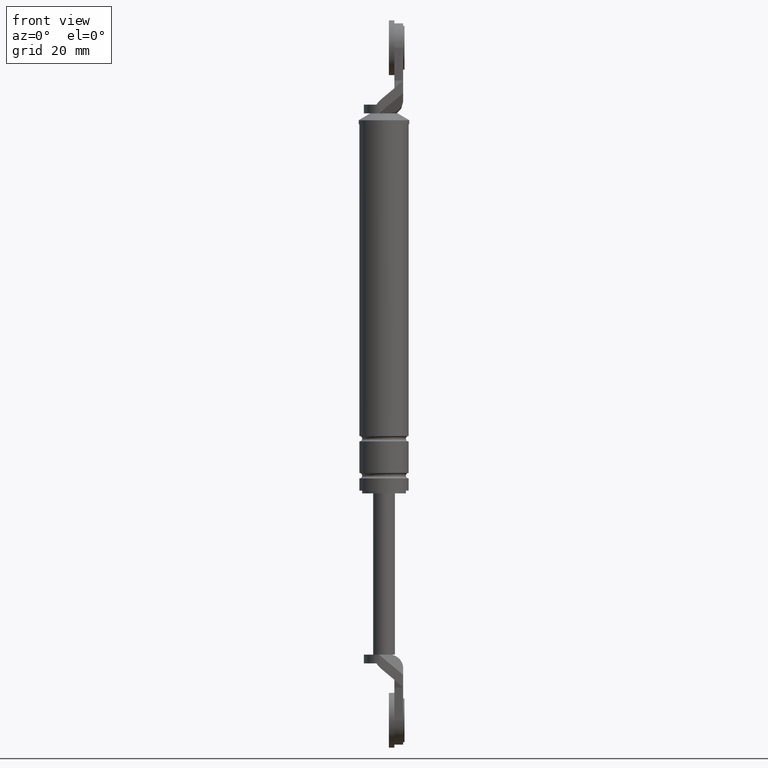
[diagram: clean part render]
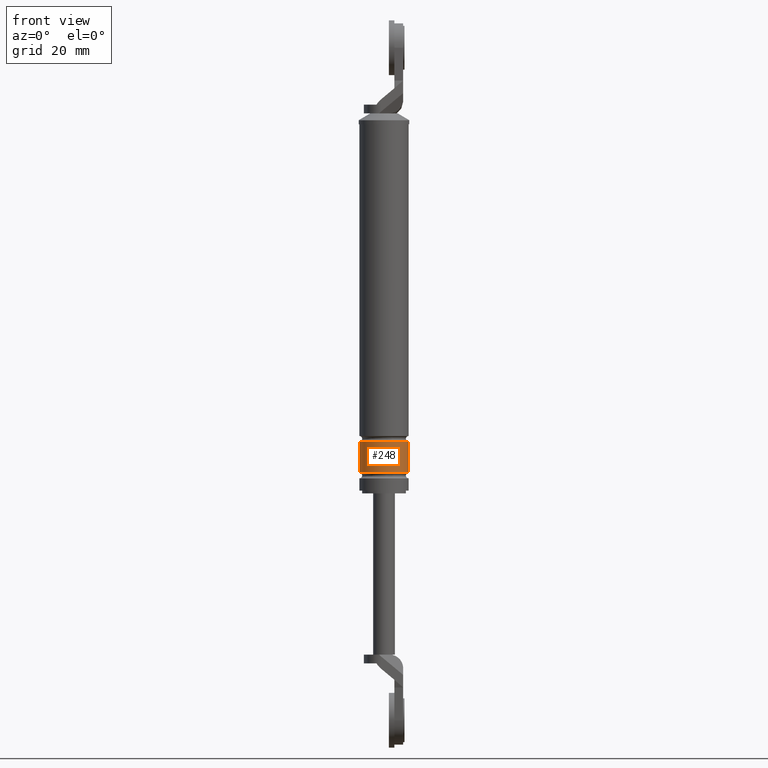
[diagram: same view with one face highlighted and labeled with its STEP entity id]
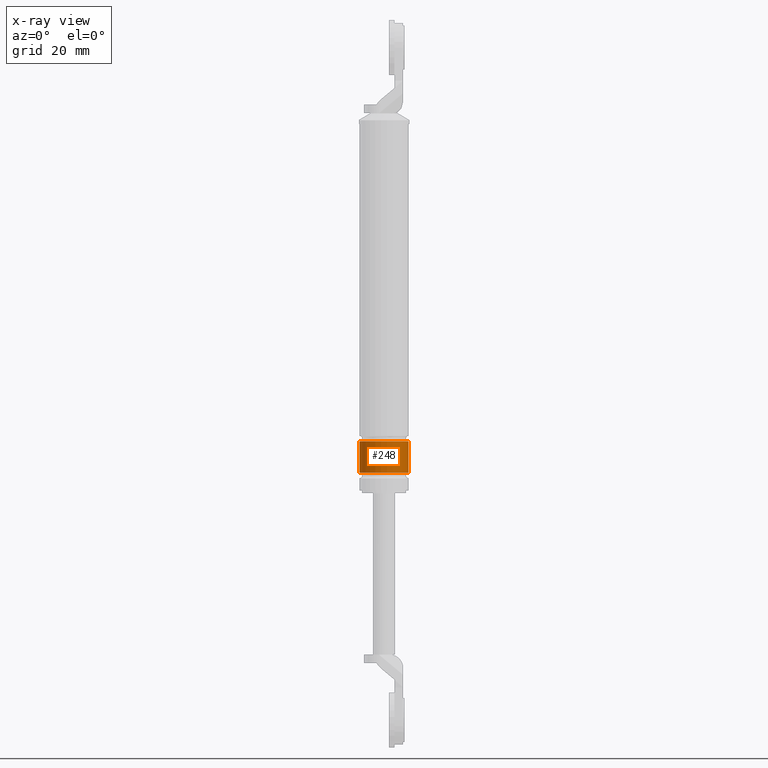
[diagram: x-ray of the same camera — body ghosted, the highlighted face saturated]
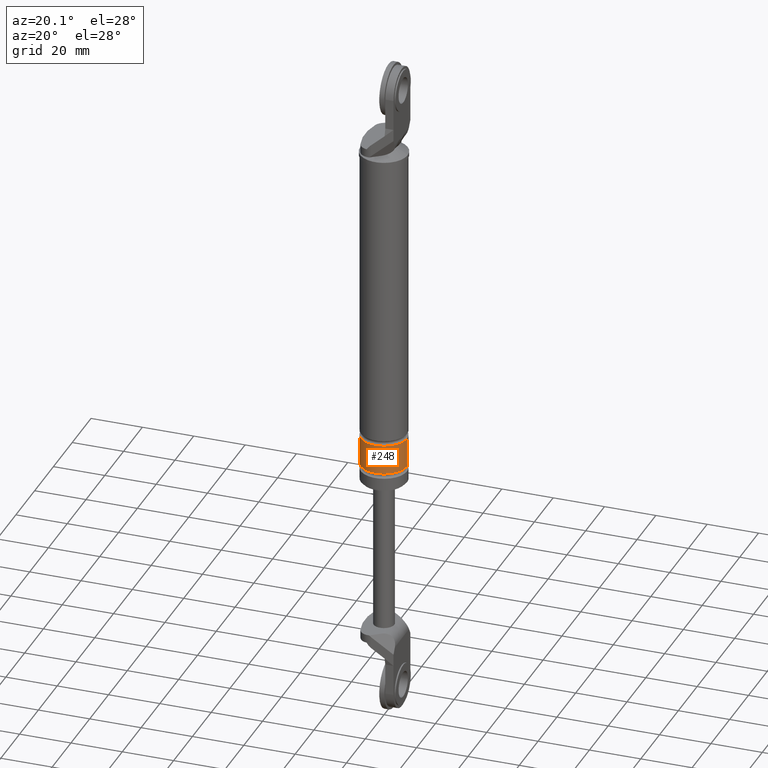
[diagram: same view with one face highlighted and labeled with its STEP entity id]
A machine part, front view. The second image highlights one B-rep face of the part: STEP entity #248.
The next image is the same camera in x-ray: the body ghosted, the highlighted face saturated — about 0% of this face is hidden behind the body in this view.
A second angle (auxiliary view) of the same face is appended — the face is thin or edge-on in the first view.
In plain terms, the highlighted cylindrical surface (edge-blend (fillet) strip) has radius 9 mm, axis along (0, 0, 1).
Its self-contained STEP definition (entity closure, byte-faithful):
#248=ADVANCED_FACE('',(#735),#734,.T.);
#734=CYLINDRICAL_SURFACE('',#1469,9.00000000000E+000);
#735=FACE_OUTER_BOUND('',#1470,.T.);
#1466=CARTESIAN_POINT('',(0.00000000000E+000,3.58204186421E-014,0.00000000000E+000));
#1467=DIRECTION('',(-0.00000000000E+000,-0.00000000000E+000,1.00000000000E+000));
#1468=DIRECTION('',(1.00000000000E+000,0.00000000000E+000,0.00000000000E+000));
#1469=AXIS2_PLACEMENT_3D('',#1466,#1467,#1468);
#1470=EDGE_LOOP('',(#1970,#1971,#1972,#1973));
#1970=ORIENTED_EDGE('',*,*,#2272,.F.);
#1971=ORIENTED_EDGE('',*,*,#2269,.T.);
#1972=ORIENTED_EDGE('',*,*,#2268,.T.);
#1973=ORIENTED_EDGE('',*,*,#2271,.F.);
#2268=EDGE_CURVE('',#3072,#3079,#3092,.T.);
#2269=EDGE_CURVE('',#3098,#3072,#3099,.T.);
#2271=EDGE_CURVE('',#3105,#3079,#3112,.T.);
#2272=EDGE_CURVE('',#3098,#3105,#3118,.T.);
#3072=VERTEX_POINT('',#4117);
#3079=VERTEX_POINT('',#4123);
#3092=CIRCLE('',#4136,9.00000000000E+000);
#3098=VERTEX_POINT('',#4137);
#3099=(BOUNDED_CURVE() B_SPLINE_CURVE(1,(#4138,#4139),.UNSPECIFIED.,.F.,.F.) B_SPLINE_CURVE_WITH_KNOTS((2,2),(8.33333343261E-002,9.16666667006E-001),.UNSPECIFIED.) CURVE() GEOMETRIC_REPRESENTATION_ITEM() RATIONAL_B_SPLINE_CURVE((1.00000000000E+000,1.00000000000E+000)) REPRESENTATION_ITEM('') );
#3105=VERTEX_POINT('',#4140);
#3112=(BOUNDED_CURVE() B_SPLINE_CURVE(1,(#4145,#4146),.UNSPECIFIED.,.F.,.F.) B_SPLINE_CURVE_WITH_KNOTS((2,2),(8.33333333333E-002,9.16666666667E-001),.UNSPECIFIED.) CURVE() GEOMETRIC_REPRESENTATION_ITEM() RATIONAL_B_SPLINE_CURVE((7.50000000000E-001,7.50000000000E-001)) REPRESENTATION_ITEM('') );
#3118=CIRCLE('',#4150,9.00000000000E+000);
#4117=CARTESIAN_POINT('',(9.00000000000E+000,3.61192557345E-014,-3.10000150000E+001));
#4123=CARTESIAN_POINT('',(-9.00000000000E+000,3.58204186421E-014,-3.10000150000E+001));
#4133=CARTESIAN_POINT('',(0.00000000000E+000,3.58204186421E-014,-3.10000150000E+001));
#4134=DIRECTION('',(-0.00000000000E+000,0.00000000000E+000,-1.00000000000E+000));
#4135=DIRECTION('',(-1.00000000000E+000,-1.22460635382E-016,0.00000000000E+000));
#4136=AXIS2_PLACEMENT_3D('',#4133,#4134,#4135);
#4137=CARTESIAN_POINT('',(9.00000000000E+000,3.61192557345E-014,-4.25000150000E+001));
#4138=CARTESIAN_POINT('',(9.00000000000E+000,3.58204186421E-014,-4.25000149863E+001));
#4139=CARTESIAN_POINT('',(9.00000000000E+000,3.58204186421E-014,-3.10000149953E+001));
#4140=CARTESIAN_POINT('',(-9.00000000000E+000,3.58204186421E-014,-4.25000150000E+001));
#4145=CARTESIAN_POINT('',(-9.00000000000E+000,3.52310773148E-014,-4.25000150000E+001));
#4146=CARTESIAN_POINT('',(-9.00000000000E+000,3.52310773148E-014,-3.10000150000E+001));
#4147=CARTESIAN_POINT('',(0.00000000000E+000,3.58204186421E-014,-4.25000150000E+001));
#4148=DIRECTION('',(-0.00000000000E+000,0.00000000000E+000,-1.00000000000E+000));
#4149=DIRECTION('',(-1.00000000000E+000,-1.22460635382E-016,0.00000000000E+000));
#4150=AXIS2_PLACEMENT_3D('',#4147,#4148,#4149);